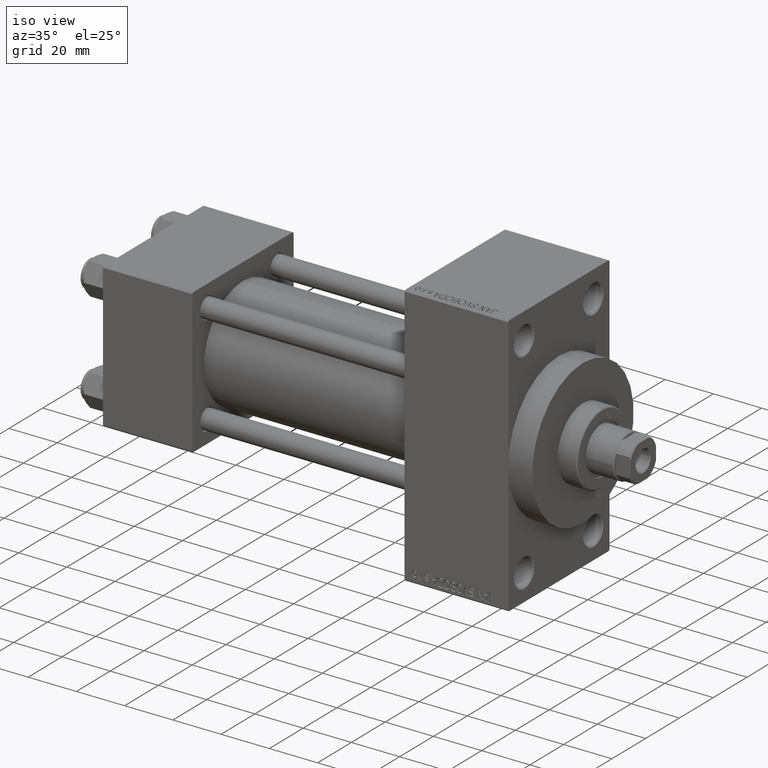
[diagram: clean part render]
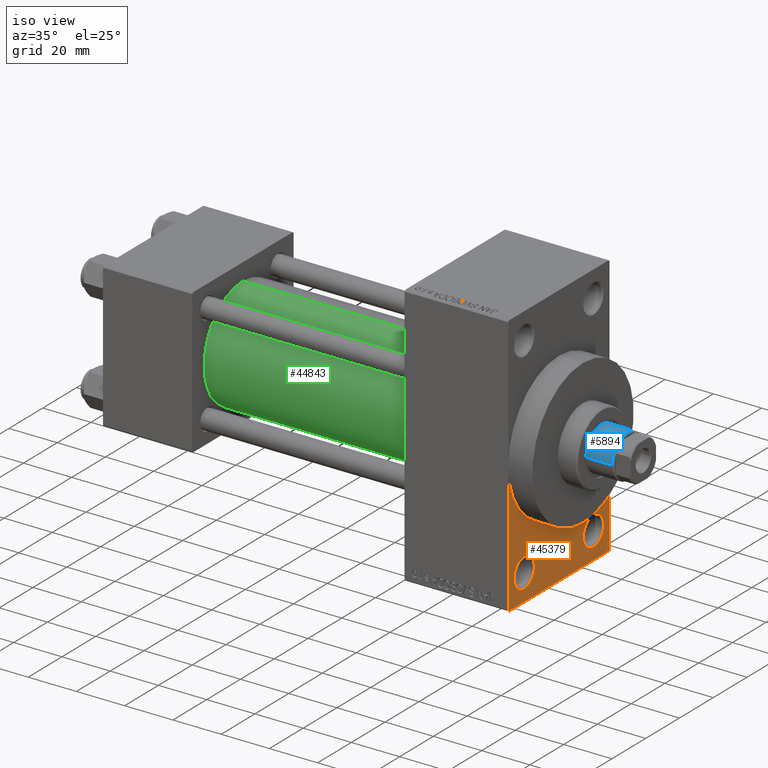
[diagram: same view with three faces highlighted in distinct colors, each labeled with its STEP entity id]
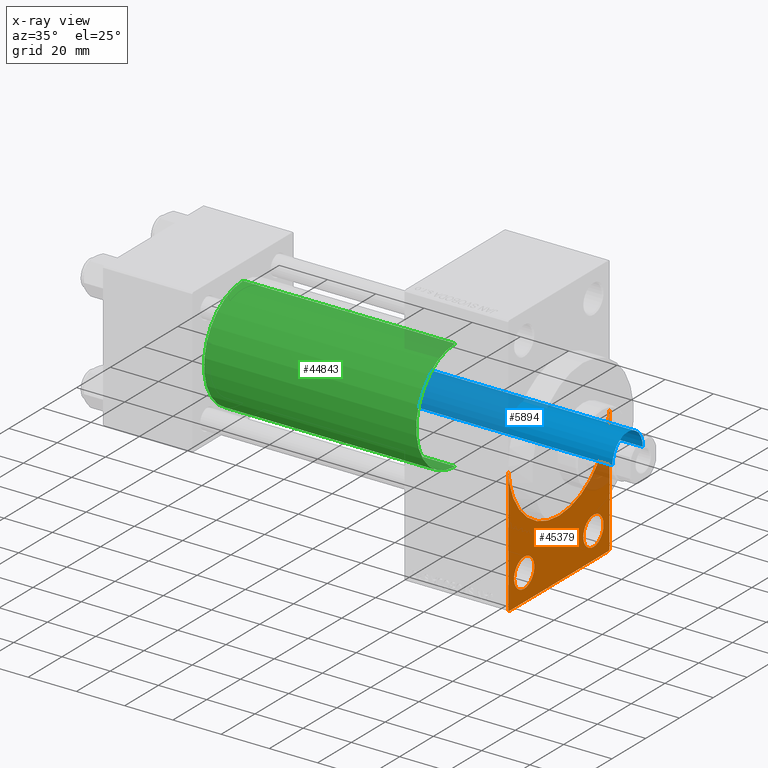
[diagram: x-ray of the same camera — body ghosted, the three highlighted faces saturated]
A machine part, iso view with three faces highlighted in distinct colors.
The next image is the same camera in x-ray (body ghosted, the three faces saturated) — at least one of them is partly hidden behind the body in this view.
Their STEP definitions:

[orange] entity #45379 — the highlighted planar face has unit normal (-1, 0, 0).
#240 = CARTESIAN_POINT ( 'NONE',  ( 167.9999999999999716, -20.50000000000000000, -43.50000000000000000 ) ) ;
#1240 = ORIENTED_EDGE ( 'NONE', *, *, #8347, .T. ) ;
#1337 = AXIS2_PLACEMENT_3D ( 'NONE', #39234, #28739, #20610 ) ;
#1975 = ORIENTED_EDGE ( 'NONE', *, *, #6500, .F. ) ;
#2824 = EDGE_LOOP ( 'NONE', ( #14646, #26359, #1975, #32297, #7975, #44980, #10577 ) ) ;
#2900 = CARTESIAN_POINT ( 'NONE',  ( 167.9999999999999716, 0.000000000000000000, 0.000000000000000000 ) ) ;
#3318 = VERTEX_POINT ( 'NONE', #41957 ) ;
#3500 = AXIS2_PLACEMENT_3D ( 'NONE', #26760, #27469, #20044 ) ;
#4651 = CIRCLE ( 'NONE', #25256, 5.999999999999977796 ) ;
#4866 = CARTESIAN_POINT ( 'NONE',  ( 167.9999999999999716, 29.49999999999999645, -54.49999999999999289 ) ) ;
#5047 = CARTESIAN_POINT ( 'NONE',  ( 167.9999999999999716, -20.50000000000000000, -43.50000000000000000 ) ) ;
#5700 = LINE ( 'NONE', #16244, #35009 ) ;
#6210 = CARTESIAN_POINT ( 'NONE',  ( 167.9999999999999716, 29.99999999999999645, -54.49999999999999289 ) ) ;
#6455 = AXIS2_PLACEMENT_3D ( 'NONE', #2900, #31601, #17252 ) ;
#6500 = EDGE_CURVE ( 'NONE', #24884, #11086, #27972, .T. ) ;
#6698 = CIRCLE ( 'NONE', #8258, 5.999999999999977796 ) ;
#6726 = CARTESIAN_POINT ( 'NONE',  ( 167.9999999999999716, -30.00000000000000000, 0.000000000000000000 ) ) ;
#7641 = CARTESIAN_POINT ( 'NONE',  ( 167.9999999999999716, 29.99999999999999645, 54.49999999999999289 ) ) ;
#7975 = ORIENTED_EDGE ( 'NONE', *, *, #25528, .F. ) ;
#8135 = DIRECTION ( 'NONE',  ( 0.000000000000000000, 0.7071067811865352493, -0.7071067811865597852 ) ) ;
#8192 = VERTEX_POINT ( 'NONE', #9130 ) ;
#8258 = AXIS2_PLACEMENT_3D ( 'NONE', #21592, #36171, #28776 ) ;
#8347 = EDGE_CURVE ( 'NONE', #13360, #39538, #19757, .T. ) ;
#9130 = CARTESIAN_POINT ( 'NONE',  ( 167.9999999999999716, -30.00000000000000000, -53.99999999999998579 ) ) ;
#9186 = LINE ( 'NONE', #30938, #44515 ) ;
#10577 = ORIENTED_EDGE ( 'NONE', *, *, #22586, .F. ) ;
#10779 = VERTEX_POINT ( 'NONE', #13546 ) ;
#11086 = VERTEX_POINT ( 'NONE', #24957 ) ;
#11366 = VECTOR ( 'NONE', #8135, 1000.000000000000000 ) ;
#12244 = AXIS2_PLACEMENT_3D ( 'NONE', #23020, #37120, #37809 ) ;
#13360 = VERTEX_POINT ( 'NONE', #14679 ) ;
#13546 = CARTESIAN_POINT ( 'NONE',  ( 167.9999999999999716, 30.00000000000000000, 0.000000000000000000 ) ) ;
#14646 = ORIENTED_EDGE ( 'NONE', *, *, #17818, .T. ) ;
#14679 = CARTESIAN_POINT ( 'NONE',  ( 167.9999999999999716, -20.50000000000000000, -37.50000000000002132 ) ) ;
#14806 = LINE ( 'NONE', #7641, #23375 ) ;
#14826 = DIRECTION ( 'NONE',  ( 0.000000000000000000, 0.000000000000000000, 1.000000000000000000 ) ) ;
#15607 = FACE_BOUND ( 'NONE', #15926, .T. ) ;
#15843 = FACE_BOUND ( 'NONE', #30944, .T. ) ;
#15926 = EDGE_LOOP ( 'NONE', ( #21771, #1240 ) ) ;
#16244 = CARTESIAN_POINT ( 'NONE',  ( 167.9999999999999716, 29.99999999999999645, -53.99999999999999289 ) ) ;
#16960 = ORIENTED_EDGE ( 'NONE', *, *, #33448, .T. ) ;
#17252 = DIRECTION ( 'NONE',  ( 0.000000000000000000, 0.000000000000000000, -1.000000000000000000 ) ) ;
#17818 = EDGE_CURVE ( 'NONE', #46549, #8192, #9186, .T. ) ;
#17922 = DIRECTION ( 'NONE',  ( 0.000000000000000000, -1.000000000000000000, -1.156482317317871478E-16 ) ) ;
#19634 = DIRECTION ( 'NONE',  ( 0.000000000000000000, 0.000000000000000000, 1.000000000000000000 ) ) ;
#19757 = CIRCLE ( 'NONE', #36537, 5.999999999999977796 ) ;
#19937 = DIRECTION ( 'NONE',  ( 0.000000000000000000, 0.000000000000000000, -1.000000000000000000 ) ) ;
#20044 = DIRECTION ( 'NONE',  ( 0.000000000000000000, 0.000000000000000000, 1.000000000000000000 ) ) ;
#20380 = CARTESIAN_POINT ( 'NONE',  ( 167.9999999999999716, -20.50000000000000000, -49.49999999999997158 ) ) ;
#20610 = DIRECTION ( 'NONE',  ( 0.000000000000000000, 0.000000000000000000, -1.000000000000000000 ) ) ;
#21029 = LINE ( 'NONE', #35616, #11366 ) ;
#21592 = CARTESIAN_POINT ( 'NONE',  ( 167.9999999999999716, 20.50000000000000000, -43.50000000000000000 ) ) ;
#21771 = ORIENTED_EDGE ( 'NONE', *, *, #37676, .T. ) ;
#22280 = DIRECTION ( 'NONE',  ( -1.000000000000000000, 0.000000000000000000, -0.000000000000000000 ) ) ;
#22586 = EDGE_CURVE ( 'NONE', #46549, #45535, #30914, .T. ) ;
#22735 = CIRCLE ( 'NONE', #1337, 30.00000000000000000 ) ;
#22963 = CARTESIAN_POINT ( 'NONE',  ( 167.9999999999999716, 20.50000000000000000, -49.49999999999997158 ) ) ;
#23020 = CARTESIAN_POINT ( 'NONE',  ( 167.9999999999999716, 0.000000000000000000, 0.000000000000000000 ) ) ;
#23375 = VECTOR ( 'NONE', #33465, 1000.000000000000000 ) ;
#23663 = CARTESIAN_POINT ( 'NONE',  ( 167.9999999999999716, 20.50000000000000000, -37.50000000000002132 ) ) ;
#24109 = CIRCLE ( 'NONE', #3500, 5.999999999999977796 ) ;
#24884 = VERTEX_POINT ( 'NONE', #4866 ) ;
#24957 = CARTESIAN_POINT ( 'NONE',  ( 167.9999999999999716, -29.50000000000000355, -54.50000000000000000 ) ) ;
#25256 = AXIS2_PLACEMENT_3D ( 'NONE', #5047, #22280, #19634 ) ;
#25528 = EDGE_CURVE ( 'NONE', #10779, #3318, #14806, .T. ) ;
#26359 = ORIENTED_EDGE ( 'NONE', *, *, #42681, .T. ) ;
#26760 = CARTESIAN_POINT ( 'NONE',  ( 167.9999999999999716, 20.50000000000000000, -43.50000000000000000 ) ) ;
#27469 = DIRECTION ( 'NONE',  ( -1.000000000000000000, 0.000000000000000000, -0.000000000000000000 ) ) ;
#27972 = LINE ( 'NONE', #6210, #40164 ) ;
#28526 = EDGE_CURVE ( 'NONE', #30675, #30729, #24109, .T. ) ;
#28739 = DIRECTION ( 'NONE',  ( 1.000000000000000000, 0.000000000000000000, 0.000000000000000000 ) ) ;
#28776 = DIRECTION ( 'NONE',  ( 0.000000000000000000, 0.000000000000000000, 1.000000000000000000 ) ) ;
#30675 = VERTEX_POINT ( 'NONE', #22963 ) ;
#30729 = VERTEX_POINT ( 'NONE', #23663 ) ;
#30914 = CIRCLE ( 'NONE', #6455, 30.00000000000000000 ) ;
#30938 = CARTESIAN_POINT ( 'NONE',  ( 167.9999999999999716, -30.00000000000000000, 54.50000000000000000 ) ) ;
#30944 = EDGE_LOOP ( 'NONE', ( #45734, #16960 ) ) ;
#31601 = DIRECTION ( 'NONE',  ( 1.000000000000000000, 0.000000000000000000, 0.000000000000000000 ) ) ;
#32297 = ORIENTED_EDGE ( 'NONE', *, *, #41235, .T. ) ;
#33448 = EDGE_CURVE ( 'NONE', #30729, #30675, #6698, .T. ) ;
#33465 = DIRECTION ( 'NONE',  ( 0.000000000000000000, 0.000000000000000000, -1.000000000000000000 ) ) ;
#33554 = FACE_OUTER_BOUND ( 'NONE', #2824, .T. ) ;
#35009 = VECTOR ( 'NONE', #45145, 1000.000000000000114 ) ;
#35616 = CARTESIAN_POINT ( 'NONE',  ( 167.9999999999999716, -29.50000000000000355, -54.50000000000000000 ) ) ;
#36098 = DIRECTION ( 'NONE',  ( -1.000000000000000000, 0.000000000000000000, -0.000000000000000000 ) ) ;
#36171 = DIRECTION ( 'NONE',  ( -1.000000000000000000, 0.000000000000000000, -0.000000000000000000 ) ) ;
#36537 = AXIS2_PLACEMENT_3D ( 'NONE', #240, #36098, #14826 ) ;
#37120 = DIRECTION ( 'NONE',  ( -1.000000000000000000, 0.000000000000000000, -0.000000000000000000 ) ) ;
#37676 = EDGE_CURVE ( 'NONE', #39538, #13360, #4651, .T. ) ;
#37809 = DIRECTION ( 'NONE',  ( -0.000000000000000000, 0.000000000000000000, 1.000000000000000000 ) ) ;
#38289 = CARTESIAN_POINT ( 'NONE',  ( 167.9999999999999716, 3.673940397442059178E-15, -30.00000000000000000 ) ) ;
#39234 = CARTESIAN_POINT ( 'NONE',  ( 167.9999999999999716, 0.000000000000000000, 0.000000000000000000 ) ) ;
#39538 = VERTEX_POINT ( 'NONE', #20380 ) ;
#39661 = EDGE_CURVE ( 'NONE', #45535, #10779, #22735, .T. ) ;
#40164 = VECTOR ( 'NONE', #17922, 1000.000000000000000 ) ;
#41235 = EDGE_CURVE ( 'NONE', #24884, #3318, #5700, .T. ) ;
#41957 = CARTESIAN_POINT ( 'NONE',  ( 167.9999999999999716, 29.99999999999999645, -53.99999999999999289 ) ) ;
#42681 = EDGE_CURVE ( 'NONE', #8192, #11086, #21029, .T. ) ;
#44515 = VECTOR ( 'NONE', #19937, 1000.000000000000000 ) ;
#44518 = PLANE ( 'NONE',  #12244 ) ;
#44980 = ORIENTED_EDGE ( 'NONE', *, *, #39661, .F. ) ;
#45145 = DIRECTION ( 'NONE',  ( -0.000000000000000000, 0.7071067811865474617, 0.7071067811865474617 ) ) ;
#45379 = ADVANCED_FACE ( 'NONE', ( #15607, #15843, #33554 ), #44518, .F. ) ;
#45535 = VERTEX_POINT ( 'NONE', #38289 ) ;
#45734 = ORIENTED_EDGE ( 'NONE', *, *, #28526, .T. ) ;
#46549 = VERTEX_POINT ( 'NONE', #6726 ) ;

[blue] entity #5894 — the highlighted cylindrical surface (edge-blend (fillet) strip) has radius 9 mm, axis along (-1, 0, 0).
#2399 = CARTESIAN_POINT ( 'NONE',  ( -9.000000000000000000, 0.000000000000000000, 38.00000000000000000 ) ) ;
#4082 = ORIENTED_EDGE ( 'NONE', *, *, #43668, .T. ) ;
#5006 = VERTEX_POINT ( 'NONE', #16296 ) ;
#5486 = LINE ( 'NONE', #45854, #41169 ) ;
#5894 = ADVANCED_FACE ( 'NONE', ( #19051 ), #26224, .T. ) ;
#9020 = CARTESIAN_POINT ( 'NONE',  ( 0.000000000000000000, 0.000000000000000000, 159.5000000000000853 ) ) ;
#10378 = AXIS2_PLACEMENT_3D ( 'NONE', #9020, #26714, #34593 ) ;
#10493 = EDGE_CURVE ( 'NONE', #40899, #5006, #41344, .T. ) ;
#12669 = CARTESIAN_POINT ( 'NONE',  ( 9.000000000000000000, 1.102182119232617517E-15, 159.5000000000000853 ) ) ;
#16296 = CARTESIAN_POINT ( 'NONE',  ( 9.000000000000000000, 1.102182119232617517E-15, 38.00000000000000000 ) ) ;
#16564 = DIRECTION ( 'NONE',  ( 0.000000000000000000, 0.000000000000000000, 1.000000000000000000 ) ) ;
#19051 = FACE_OUTER_BOUND ( 'NONE', #40574, .T. ) ;
#19509 = DIRECTION ( 'NONE',  ( -0.000000000000000000, -0.000000000000000000, -1.000000000000000000 ) ) ;
#20527 = CARTESIAN_POINT ( 'NONE',  ( 9.000000000000000000, 1.102182119232617517E-15, 160.0000000000000000 ) ) ;
#20592 = DIRECTION ( 'NONE',  ( 1.000000000000000000, 0.000000000000000000, 0.000000000000000000 ) ) ;
#21842 = AXIS2_PLACEMENT_3D ( 'NONE', #29805, #19509, #40783 ) ;
#23440 = VECTOR ( 'NONE', #46080, 1000.000000000000000 ) ;
#24121 = LINE ( 'NONE', #20527, #23440 ) ;
#24571 = ORIENTED_EDGE ( 'NONE', *, *, #10493, .T. ) ;
#26224 = CYLINDRICAL_SURFACE ( 'NONE', #21842, 9.000000000000000000 ) ;
#26714 = DIRECTION ( 'NONE',  ( 0.000000000000000000, 0.000000000000000000, -1.000000000000000000 ) ) ;
#27785 = CARTESIAN_POINT ( 'NONE',  ( 0.000000000000000000, 0.000000000000000000, 38.00000000000000000 ) ) ;
#29717 = EDGE_CURVE ( 'NONE', #31608, #33504, #42449, .T. ) ;
#29805 = CARTESIAN_POINT ( 'NONE',  ( 0.000000000000000000, 0.000000000000000000, 160.0000000000000000 ) ) ;
#30821 = EDGE_CURVE ( 'NONE', #31608, #5006, #24121, .T. ) ;
#31608 = VERTEX_POINT ( 'NONE', #12669 ) ;
#33504 = VERTEX_POINT ( 'NONE', #35937 ) ;
#34593 = DIRECTION ( 'NONE',  ( 1.000000000000000000, 0.000000000000000000, 0.000000000000000000 ) ) ;
#35937 = CARTESIAN_POINT ( 'NONE',  ( -9.000000000000000000, 0.000000000000000000, 159.5000000000000853 ) ) ;
#40574 = EDGE_LOOP ( 'NONE', ( #44868, #46160, #4082, #24571 ) ) ;
#40783 = DIRECTION ( 'NONE',  ( -1.000000000000000000, 0.000000000000000000, 0.000000000000000000 ) ) ;
#40899 = VERTEX_POINT ( 'NONE', #2399 ) ;
#41169 = VECTOR ( 'NONE', #41812, 1000.000000000000000 ) ;
#41344 = CIRCLE ( 'NONE', #42094, 9.000000000000000000 ) ;
#41812 = DIRECTION ( 'NONE',  ( -0.000000000000000000, -0.000000000000000000, -1.000000000000000000 ) ) ;
#42094 = AXIS2_PLACEMENT_3D ( 'NONE', #27785, #16564, #20592 ) ;
#42449 = CIRCLE ( 'NONE', #10378, 9.000000000000000000 ) ;
#43668 = EDGE_CURVE ( 'NONE', #33504, #40899, #5486, .T. ) ;
#44868 = ORIENTED_EDGE ( 'NONE', *, *, #30821, .F. ) ;
#45854 = CARTESIAN_POINT ( 'NONE',  ( -9.000000000000000000, 0.000000000000000000, 160.0000000000000000 ) ) ;
#46080 = DIRECTION ( 'NONE',  ( -0.000000000000000000, -0.000000000000000000, -1.000000000000000000 ) ) ;
#46160 = ORIENTED_EDGE ( 'NONE', *, *, #29717, .T. ) ;

[green] entity #44843 — the highlighted cylindrical surface (partial cylindrical patch) has radius 23 mm, axis along (-1, -0, -0).
#1535 = AXIS2_PLACEMENT_3D ( 'NONE', #13124, #37746, #42039 ) ;
#3970 = VERTEX_POINT ( 'NONE', #4047 ) ;
#4011 = EDGE_CURVE ( 'NONE', #34703, #44928, #40841, .T. ) ;
#4047 = CARTESIAN_POINT ( 'NONE',  ( 37.00000000000000711, -2.602085213965210642E-15, 23.00000000000000000 ) ) ;
#5332 = EDGE_CURVE ( 'NONE', #31621, #3970, #30764, .T. ) ;
#5925 = CIRCLE ( 'NONE', #37228, 23.00000000000000000 ) ;
#8389 = CARTESIAN_POINT ( 'NONE',  ( 125.0000000000000000, -2.602085213965210642E-15, 23.00000000000000000 ) ) ;
#8607 = FACE_OUTER_BOUND ( 'NONE', #43405, .T. ) ;
#9553 = CARTESIAN_POINT ( 'NONE',  ( 125.0000000000000000, -2.602085213965210642E-15, 0.000000000000000000 ) ) ;
#10018 = DIRECTION ( 'NONE',  ( 0.000000000000000000, 0.000000000000000000, -1.000000000000000000 ) ) ;
#11510 = CARTESIAN_POINT ( 'NONE',  ( 125.0000000000000000, 2.146024240737016609E-16, -23.00000000000000000 ) ) ;
#13124 = CARTESIAN_POINT ( 'NONE',  ( 125.0000000000000000, -2.602085213965210642E-15, 0.000000000000000000 ) ) ;
#13513 = VECTOR ( 'NONE', #30339, 1000.000000000000000 ) ;
#14481 = CARTESIAN_POINT ( 'NONE',  ( 37.00000000000000711, 2.146024240737016609E-16, -23.00000000000000000 ) ) ;
#17602 = AXIS2_PLACEMENT_3D ( 'NONE', #29806, #18567, #44369 ) ;
#18567 = DIRECTION ( 'NONE',  ( 1.000000000000000000, -0.000000000000000000, 0.000000000000000000 ) ) ;
#18704 = ORIENTED_EDGE ( 'NONE', *, *, #5332, .T. ) ;
#19762 = DIRECTION ( 'NONE',  ( -1.000000000000000000, -0.000000000000000000, -0.000000000000000000 ) ) ;
#22184 = CIRCLE ( 'NONE', #17602, 23.00000000000000000 ) ;
#23160 = CARTESIAN_POINT ( 'NONE',  ( 125.0000000000000000, 2.146024240737016609E-16, -23.00000000000000000 ) ) ;
#29182 = ORIENTED_EDGE ( 'NONE', *, *, #36935, .T. ) ;
#29806 = CARTESIAN_POINT ( 'NONE',  ( 37.00000000000000711, -2.602085213965210642E-15, 0.000000000000000000 ) ) ;
#30339 = DIRECTION ( 'NONE',  ( -1.000000000000000000, -0.000000000000000000, -0.000000000000000000 ) ) ;
#30764 = LINE ( 'NONE', #37920, #37099 ) ;
#31621 = VERTEX_POINT ( 'NONE', #8389 ) ;
#34534 = ORIENTED_EDGE ( 'NONE', *, *, #4011, .F. ) ;
#34703 = VERTEX_POINT ( 'NONE', #11510 ) ;
#34880 = CYLINDRICAL_SURFACE ( 'NONE', #1535, 23.00000000000000000 ) ;
#36935 = EDGE_CURVE ( 'NONE', #3970, #44928, #22184, .T. ) ;
#37099 = VECTOR ( 'NONE', #19762, 1000.000000000000000 ) ;
#37228 = AXIS2_PLACEMENT_3D ( 'NONE', #9553, #42292, #10018 ) ;
#37746 = DIRECTION ( 'NONE',  ( -1.000000000000000000, -0.000000000000000000, -0.000000000000000000 ) ) ;
#37920 = CARTESIAN_POINT ( 'NONE',  ( 125.0000000000000000, -2.602085213965210642E-15, 23.00000000000000000 ) ) ;
#39125 = EDGE_CURVE ( 'NONE', #31621, #34703, #5925, .T. ) ;
#40841 = LINE ( 'NONE', #23160, #13513 ) ;
#42039 = DIRECTION ( 'NONE',  ( 0.000000000000000000, 0.000000000000000000, 1.000000000000000000 ) ) ;
#42292 = DIRECTION ( 'NONE',  ( 1.000000000000000000, 0.000000000000000000, 0.000000000000000000 ) ) ;
#43288 = ORIENTED_EDGE ( 'NONE', *, *, #39125, .F. ) ;
#43405 = EDGE_LOOP ( 'NONE', ( #34534, #43288, #18704, #29182 ) ) ;
#44369 = DIRECTION ( 'NONE',  ( 0.000000000000000000, 0.000000000000000000, 1.000000000000000000 ) ) ;
#44843 = ADVANCED_FACE ( 'NONE', ( #8607 ), #34880, .T. ) ;
#44928 = VERTEX_POINT ( 'NONE', #14481 ) ;